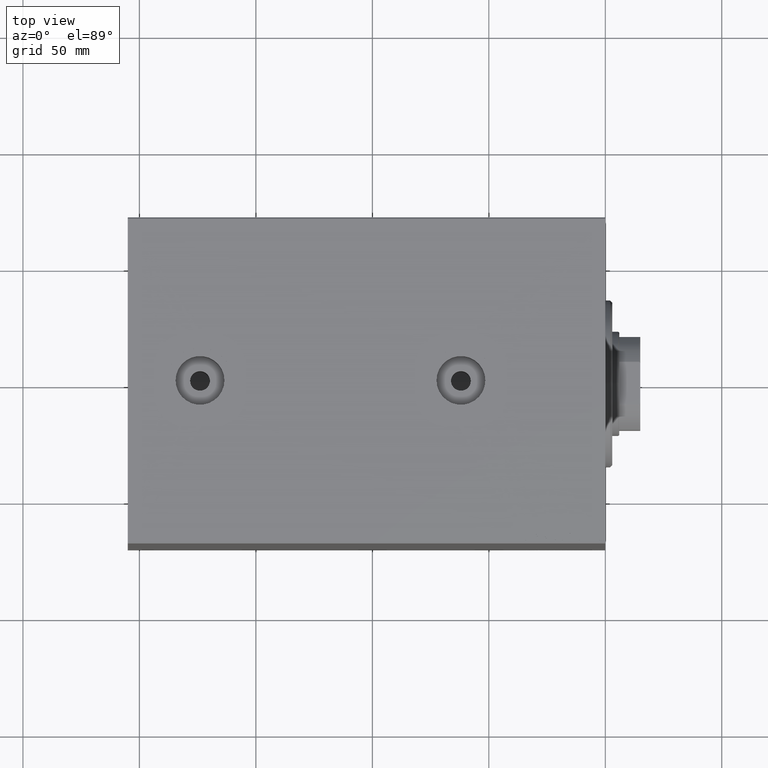
[diagram: clean part render]
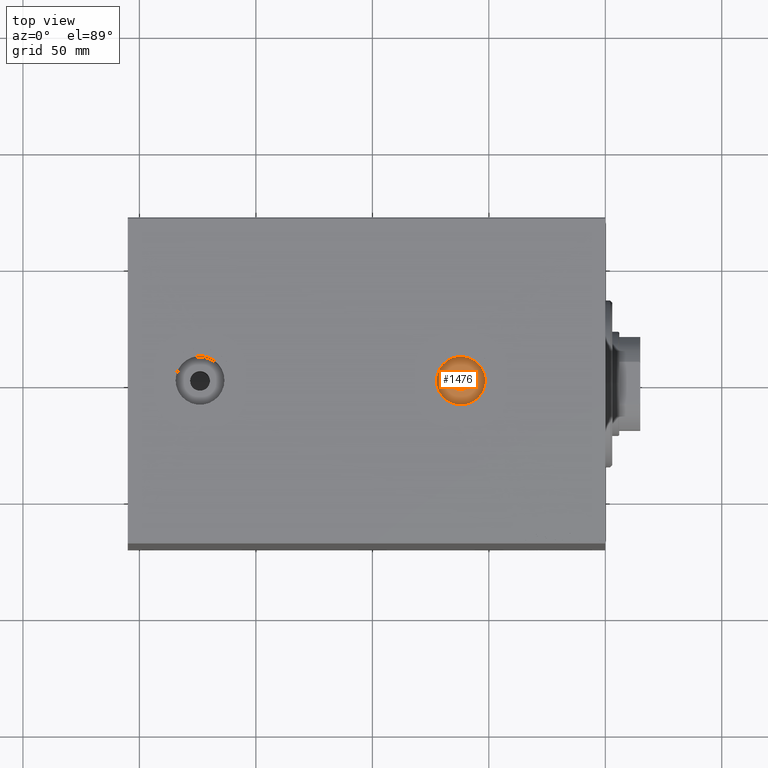
[diagram: same view with one face highlighted and labeled with its STEP entity id]
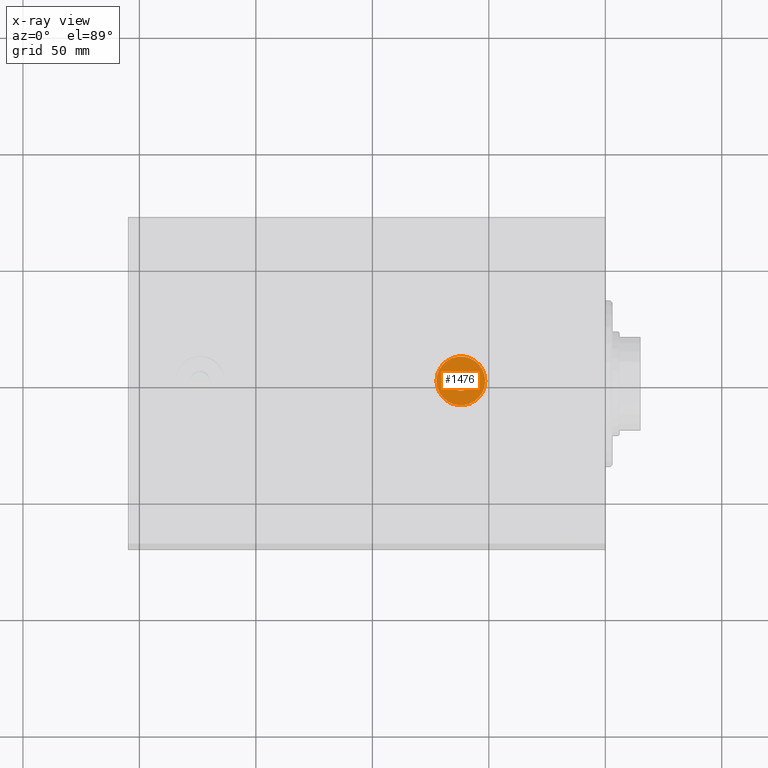
[diagram: x-ray of the same camera — body ghosted, the highlighted face saturated]
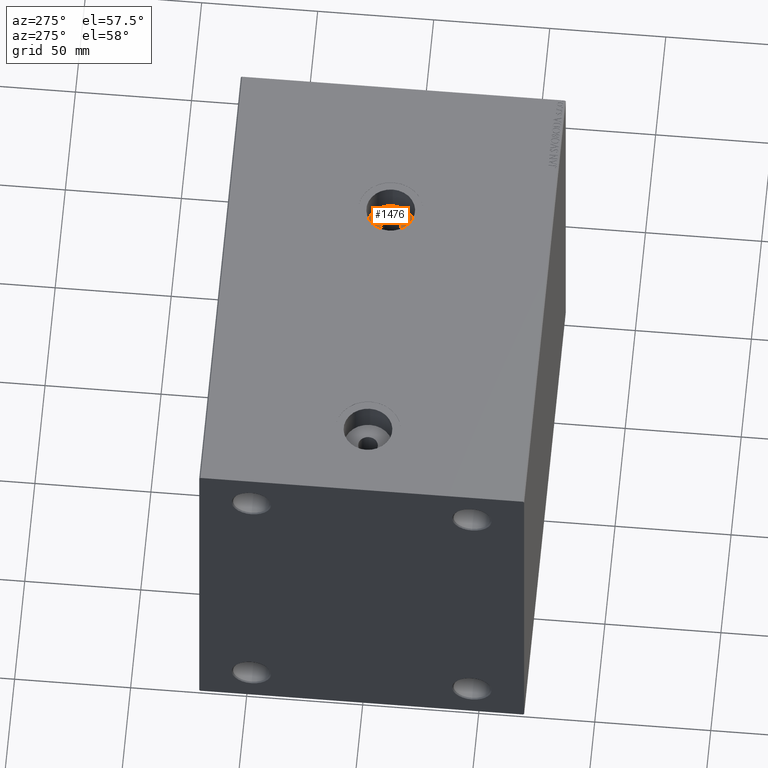
[diagram: same view with one face highlighted and labeled with its STEP entity id]
A machine part, top view. The second image highlights one B-rep face of the part: STEP entity #1476.
The next image is the same camera in x-ray: the body ghosted, the highlighted face saturated — about 0% of this face is hidden behind the body in this view.
A second angle (auxiliary view) of the same face is appended — the face is thin or edge-on in the first view.
In plain terms, the highlighted planar face has unit normal (-0, 0, 1).
Its self-contained STEP definition (entity closure, byte-faithful):
#1476 = ADVANCED_FACE ( 'NONE', ( #3818, #45716 ), #32533, .T. ) ;
#2950 = CARTESIAN_POINT ( 'NONE',  ( 62.00000000000000000, -7.809270427870432818E-15, -72.00000000000002842 ) ) ;
#3105 = VERTEX_POINT ( 'NONE', #26444 ) ;
#3818 = FACE_BOUND ( 'NONE', #31446, .T. ) ;
#4595 = DIRECTION ( 'NONE',  ( -1.000000000000000000, 0.000000000000000000, 0.000000000000000000 ) ) ;
#4892 = DIRECTION ( 'NONE',  ( -1.000000000000000000, 0.000000000000000000, 0.000000000000000000 ) ) ;
#7126 = EDGE_CURVE ( 'NONE', #32531, #35806, #19955, .T. ) ;
#7191 = CARTESIAN_POINT ( 'NONE',  ( 62.00000000000000000, -7.809270427870432818E-15, -72.00000000000002842 ) ) ;
#7312 = DIRECTION ( 'NONE',  ( -1.000000000000000000, 0.000000000000000000, -0.000000000000000000 ) ) ;
#8729 = EDGE_LOOP ( 'NONE', ( #21297, #12821 ) ) ;
#9663 = AXIS2_PLACEMENT_3D ( 'NONE', #24953, #21446, #39236 ) ;
#10238 = DIRECTION ( 'NONE',  ( 0.000000000000000000, 0.000000000000000000, -1.000000000000000000 ) ) ;
#12821 = ORIENTED_EDGE ( 'NONE', *, *, #41047, .T. ) ;
#13479 = DIRECTION ( 'NONE',  ( 0.000000000000000000, 0.000000000000000000, -1.000000000000000000 ) ) ;
#16408 = CARTESIAN_POINT ( 'NONE',  ( 66.25000000000000000, -7.288795538232806861E-15, -72.00000000000002842 ) ) ;
#17934 = VERTEX_POINT ( 'NONE', #26514 ) ;
#19581 = ORIENTED_EDGE ( 'NONE', *, *, #42859, .F. ) ;
#19955 = CIRCLE ( 'NONE', #26696, 4.250000000000003553 ) ;
#21297 = ORIENTED_EDGE ( 'NONE', *, *, #26740, .T. ) ;
#21446 = DIRECTION ( 'NONE',  ( 0.000000000000000000, 0.000000000000000000, -1.000000000000000000 ) ) ;
#24953 = CARTESIAN_POINT ( 'NONE',  ( 62.00000000000000000, -7.809270427870432818E-15, -72.00000000000002842 ) ) ;
#24962 = AXIS2_PLACEMENT_3D ( 'NONE', #26139, #37588, #4892 ) ;
#26139 = CARTESIAN_POINT ( 'NONE',  ( 62.00000000000000000, -7.809270427870432818E-15, -72.00000000000002842 ) ) ;
#26444 = CARTESIAN_POINT ( 'NONE',  ( 51.51999999999999602, -7.809270427870432818E-15, -72.00000000000002842 ) ) ;
#26514 = CARTESIAN_POINT ( 'NONE',  ( 72.48000000000000398, -6.525840582364006541E-15, -72.00000000000002842 ) ) ;
#26696 = AXIS2_PLACEMENT_3D ( 'NONE', #28898, #29583, #4595 ) ;
#26740 = EDGE_CURVE ( 'NONE', #3105, #17934, #35421, .T. ) ;
#27640 = ORIENTED_EDGE ( 'NONE', *, *, #7126, .F. ) ;
#28898 = CARTESIAN_POINT ( 'NONE',  ( 62.00000000000000000, -7.809270427870432818E-15, -72.00000000000002842 ) ) ;
#29007 = CIRCLE ( 'NONE', #41730, 10.48000000000000398 ) ;
#29583 = DIRECTION ( 'NONE',  ( 0.000000000000000000, 0.000000000000000000, -1.000000000000000000 ) ) ;
#31446 = EDGE_LOOP ( 'NONE', ( #19581, #27640 ) ) ;
#32043 = CIRCLE ( 'NONE', #9663, 4.250000000000003553 ) ;
#32531 = VERTEX_POINT ( 'NONE', #16408 ) ;
#32533 = PLANE ( 'NONE',  #45213 ) ;
#32849 = CARTESIAN_POINT ( 'NONE',  ( 57.74999999999999289, -7.809270427870432818E-15, -72.00000000000002842 ) ) ;
#35421 = CIRCLE ( 'NONE', #24962, 10.48000000000000398 ) ;
#35806 = VERTEX_POINT ( 'NONE', #32849 ) ;
#37588 = DIRECTION ( 'NONE',  ( 0.000000000000000000, 0.000000000000000000, -1.000000000000000000 ) ) ;
#39236 = DIRECTION ( 'NONE',  ( -1.000000000000000000, 0.000000000000000000, 0.000000000000000000 ) ) ;
#41047 = EDGE_CURVE ( 'NONE', #17934, #3105, #29007, .T. ) ;
#41730 = AXIS2_PLACEMENT_3D ( 'NONE', #7191, #10238, #42025 ) ;
#42025 = DIRECTION ( 'NONE',  ( -1.000000000000000000, 0.000000000000000000, 0.000000000000000000 ) ) ;
#42859 = EDGE_CURVE ( 'NONE', #35806, #32531, #32043, .T. ) ;
#45213 = AXIS2_PLACEMENT_3D ( 'NONE', #2950, #13479, #7312 ) ;
#45716 = FACE_OUTER_BOUND ( 'NONE', #8729, .T. ) ;